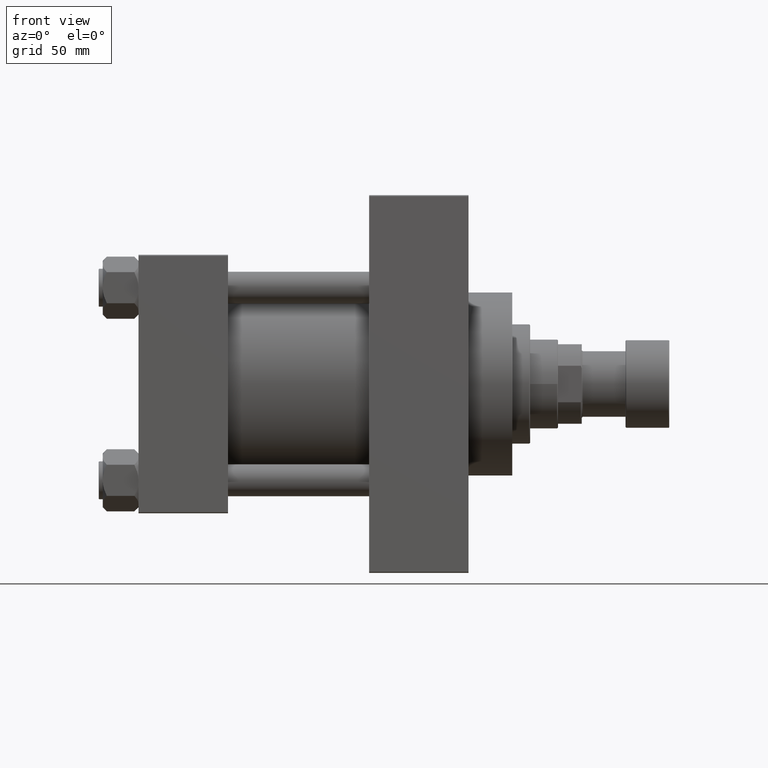
[diagram: clean part render]
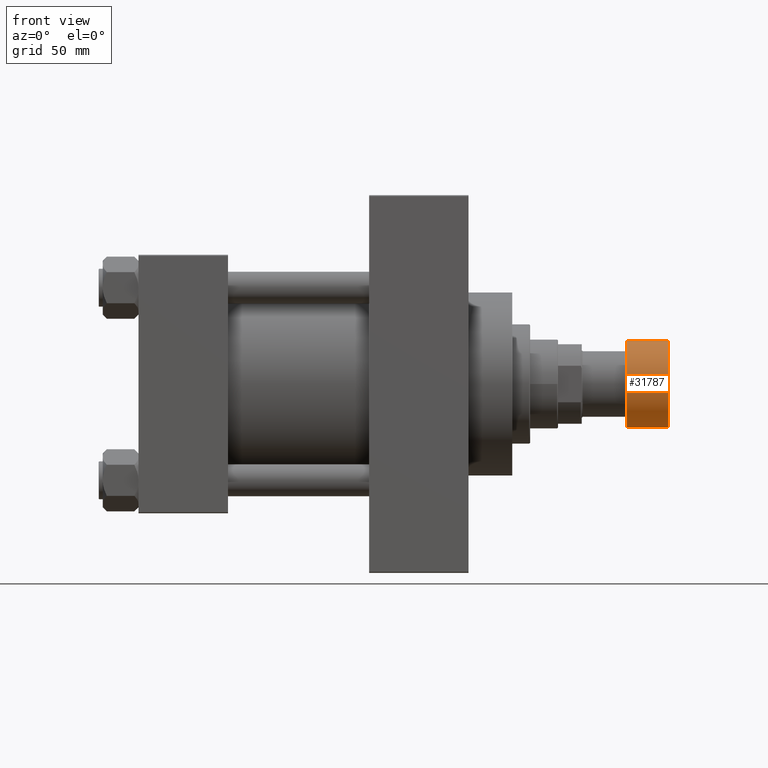
[diagram: same view with one face highlighted and labeled with its STEP entity id]
A machine part, front view. The second image highlights one B-rep face of the part: STEP entity #31787.
In plain terms, the highlighted cylindrical surface (partial cylindrical patch) has radius 22 mm, axis along (1, 0, 0).
Its self-contained STEP definition (entity closure, byte-faithful):
#950 = CARTESIAN_POINT ( 'NONE',  ( 0.000000000000000000, 0.000000000000000000, -0.5000000000000004441 ) ) ;
#2747 = DIRECTION ( 'NONE',  ( 0.000000000000000000, 0.000000000000000000, 1.000000000000000000 ) ) ;
#2762 = CIRCLE ( 'NONE', #42352, 22.00000000000000000 ) ;
#2989 = CARTESIAN_POINT ( 'NONE',  ( 22.00000000000000000, 0.000000000000000000, -22.00000000000000000 ) ) ;
#5106 = AXIS2_PLACEMENT_3D ( 'NONE', #22550, #40056, #25708 ) ;
#5833 = EDGE_CURVE ( 'NONE', #32233, #25139, #16810, .T. ) ;
#6385 = CARTESIAN_POINT ( 'NONE',  ( -22.00000000000000000, 2.694222958124176809E-15, -22.00000000000000000 ) ) ;
#7494 = DIRECTION ( 'NONE',  ( 1.000000000000000000, 0.000000000000000000, 0.000000000000000000 ) ) ;
#13032 = CARTESIAN_POINT ( 'NONE',  ( -22.00000000000000000, 2.694222958124176809E-15, -0.5000000000000004441 ) ) ;
#14439 = ORIENTED_EDGE ( 'NONE', *, *, #43117, .T. ) ;
#14474 = AXIS2_PLACEMENT_3D ( 'NONE', #40060, #25956, #7494 ) ;
#15544 = DIRECTION ( 'NONE',  ( 1.000000000000000000, 0.000000000000000000, 0.000000000000000000 ) ) ;
#16140 = ORIENTED_EDGE ( 'NONE', *, *, #20546, .F. ) ;
#16373 = VECTOR ( 'NONE', #21210, 1000.000000000000000 ) ;
#16602 = EDGE_LOOP ( 'NONE', ( #16140, #29016, #42113, #14439 ) ) ;
#16810 = CIRCLE ( 'NONE', #14474, 22.00000000000000000 ) ;
#17299 = CARTESIAN_POINT ( 'NONE',  ( -22.00000000000000000, 2.694222958124176809E-15, -21.50000000000000000 ) ) ;
#18479 = DIRECTION ( 'NONE',  ( -0.000000000000000000, -0.000000000000000000, -1.000000000000000000 ) ) ;
#20546 = EDGE_CURVE ( 'NONE', #32233, #24477, #39675, .T. ) ;
#21210 = DIRECTION ( 'NONE',  ( 0.000000000000000000, 0.000000000000000000, 1.000000000000000000 ) ) ;
#21775 = VERTEX_POINT ( 'NONE', #23366 ) ;
#22550 = CARTESIAN_POINT ( 'NONE',  ( 0.000000000000000000, 0.000000000000000000, -22.00000000000000000 ) ) ;
#23366 = CARTESIAN_POINT ( 'NONE',  ( 22.00000000000000000, 0.000000000000000000, -0.5000000000000004441 ) ) ;
#24477 = VERTEX_POINT ( 'NONE', #13032 ) ;
#25139 = VERTEX_POINT ( 'NONE', #29939 ) ;
#25229 = CYLINDRICAL_SURFACE ( 'NONE', #5106, 22.00000000000000000 ) ;
#25708 = DIRECTION ( 'NONE',  ( 1.000000000000000000, 0.000000000000000000, 0.000000000000000000 ) ) ;
#25956 = DIRECTION ( 'NONE',  ( 0.000000000000000000, 0.000000000000000000, 1.000000000000000000 ) ) ;
#27469 = VECTOR ( 'NONE', #2747, 1000.000000000000000 ) ;
#28877 = FACE_OUTER_BOUND ( 'NONE', #16602, .T. ) ;
#29016 = ORIENTED_EDGE ( 'NONE', *, *, #5833, .T. ) ;
#29939 = CARTESIAN_POINT ( 'NONE',  ( 22.00000000000000000, 0.000000000000000000, -21.50000000000000000 ) ) ;
#30288 = EDGE_CURVE ( 'NONE', #25139, #21775, #42633, .T. ) ;
#31787 = ADVANCED_FACE ( 'NONE', ( #28877 ), #25229, .T. ) ;
#32233 = VERTEX_POINT ( 'NONE', #17299 ) ;
#39675 = LINE ( 'NONE', #6385, #16373 ) ;
#40056 = DIRECTION ( 'NONE',  ( 0.000000000000000000, 0.000000000000000000, 1.000000000000000000 ) ) ;
#40060 = CARTESIAN_POINT ( 'NONE',  ( 0.000000000000000000, 0.000000000000000000, -21.50000000000000000 ) ) ;
#42113 = ORIENTED_EDGE ( 'NONE', *, *, #30288, .T. ) ;
#42352 = AXIS2_PLACEMENT_3D ( 'NONE', #950, #18479, #15544 ) ;
#42633 = LINE ( 'NONE', #2989, #27469 ) ;
#43117 = EDGE_CURVE ( 'NONE', #21775, #24477, #2762, .T. ) ;